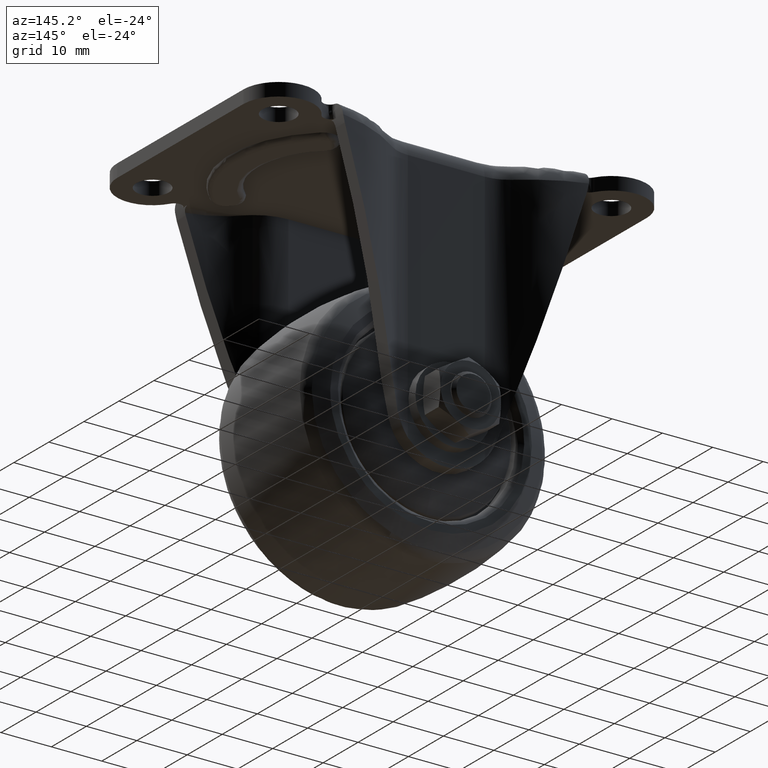
[diagram: clean part render]
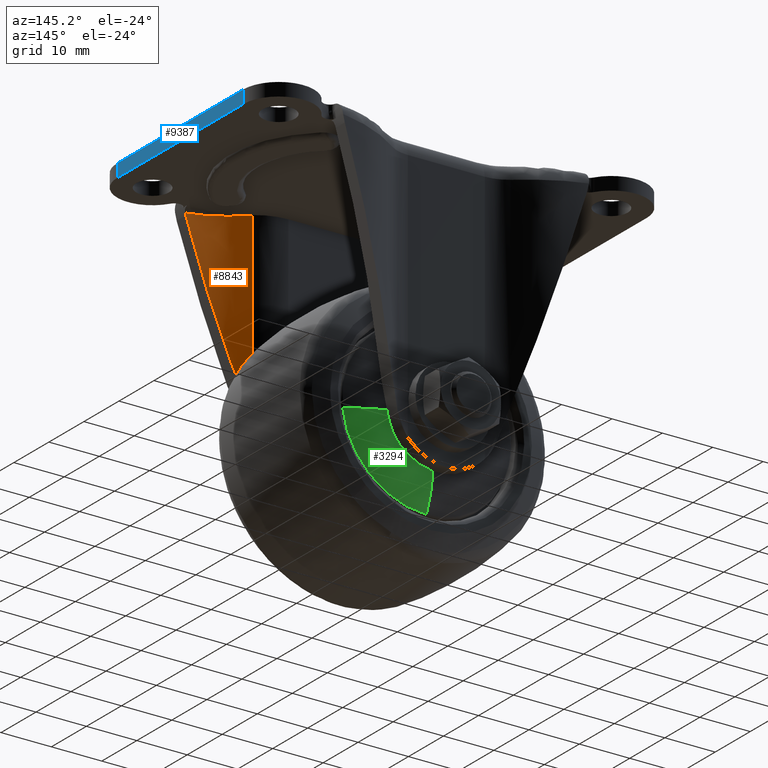
[diagram: same view with three faces highlighted in distinct colors, each labeled with its STEP entity id]
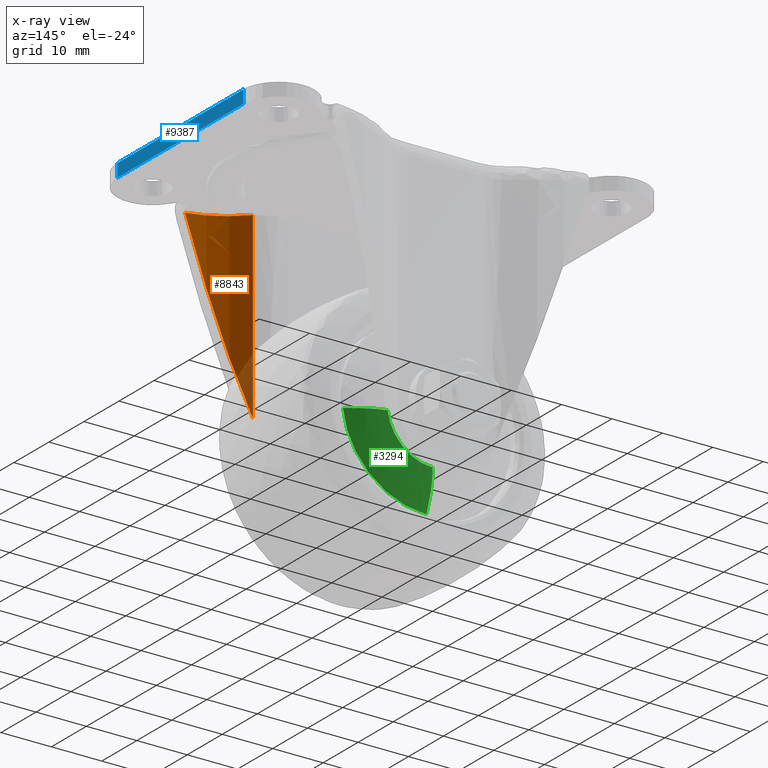
[diagram: x-ray of the same camera — body ghosted, the three highlighted faces saturated]
A machine part, auxiliary view with three faces highlighted in distinct colors.
The next image is the same camera in x-ray (body ghosted, the three faces saturated) — at least one of them is partly hidden behind the body in this view.
Their STEP definitions:

[orange] entity #8843 — the highlighted face is a freeform B-spline surface patch.
#5348=CARTESIAN_POINT('',(24.185625948997298,-21.397332430815851,-3.583078476151100));
#5349=VERTEX_POINT('',#5348);
#5362=CARTESIAN_POINT('',(13.345072648237799,-17.665193757485248,-2.600000000000160));
#5363=VERTEX_POINT('',#5362);
#5364=CARTESIAN_POINT('',(13.345072648237799,-17.665193757485248,-2.600000000000160));
#5365=CARTESIAN_POINT('',(14.556983112431960,-18.579596129378061,-2.723537442900512));
#5366=CARTESIAN_POINT('',(16.411652186417150,-19.648787723245949,-2.903539930618084));
#5367=CARTESIAN_POINT('',(19.207906352339648,-20.673314979693330,-3.158815099398745));
#5368=CARTESIAN_POINT('',(21.516683330001388,-21.221843247098111,-3.361431576712816));
#5369=CARTESIAN_POINT('',(23.274907205083679,-21.381871348119109,-3.508664531443601));
#5370=CARTESIAN_POINT('',(24.185625948997298,-21.397332430815851,-3.583078476151100));
#5371=B_SPLINE_CURVE_WITH_KNOTS('',3,(#5364,#5365,#5366,#5367,#5368,#5369,#5370),.UNSPECIFIED.,.F.,.U.,(4,1,1,1,4),(0.000000014599969,4.569437266361647,6.397186089417688,8.956089958446960,11.697748094953649),.UNSPECIFIED.);
#5372=EDGE_CURVE('',#5363,#5349,#5371,.T.);
#5605=CARTESIAN_POINT('',(24.057246435837801,-21.394708519502700,-4.038003514926206));
#5606=VERTEX_POINT('',#5605);
#5612=CARTESIAN_POINT('',(24.185625948997298,-21.397332430815851,-3.583078476151100));
#5613=CARTESIAN_POINT('',(24.057246435837801,-21.394708519502700,-4.038003514926206));
#5614=QUASI_UNIFORM_CURVE('',1,(#5612,#5613),.UNSPECIFIED.,.F.,.U.);
#5615=EDGE_CURVE('',#5349,#5606,#5614,.T.);
#8023=CARTESIAN_POINT('',(13.345072648237799,-17.665193757485248,-38.829692088989098));
#8024=VERTEX_POINT('',#8023);
#8025=CARTESIAN_POINT('',(13.345072648237799,-17.665193757485248,-38.829692088989098));
#8026=CARTESIAN_POINT('',(18.101501711263079,-21.252330403959220,-23.381455160929320));
#8027=CARTESIAN_POINT('',(24.057246435837801,-21.394708519502700,-4.038003514926206));
#8035=(BOUNDED_CURVE()B_SPLINE_CURVE(2,(#8025,#8026,#8027),.UNSPECIFIED.,.F.,.U.)CURVE()GEOMETRIC_REPRESENTATION_ITEM()QUASI_UNIFORM_CURVE()RATIONAL_B_SPLINE_CURVE((1.0,0.951988168835635,1.0))REPRESENTATION_ITEM(''));
#8036=EDGE_CURVE('',#8024,#5606,#8035,.T.);
#8797=CARTESIAN_POINT('',(13.345072648237799,-17.665193757485248,-38.829692088989098));
#8798=CARTESIAN_POINT('',(13.345072648237799,-17.665193757485248,-2.600000000000160));
#8799=QUASI_UNIFORM_CURVE('',1,(#8797,#8798),.UNSPECIFIED.,.F.,.U.);
#8800=EDGE_CURVE('',#8024,#5363,#8799,.T.);
#8823=CARTESIAN_POINT('',(24.755138643204500,-21.398243030921414,-39.735434391213815));
#8824=CARTESIAN_POINT('',(24.755138643204500,-21.398243030921414,-1.671614140219816));
#8825=CARTESIAN_POINT('',(18.089075750196702,-21.490056812341987,-39.735434391213836));
#8826=CARTESIAN_POINT('',(18.089075750196702,-21.490056812341987,-1.671614140219816));
#8827=CARTESIAN_POINT('',(12.893050368903465,-17.313198602999623,-39.735434391213822));
#8828=CARTESIAN_POINT('',(12.893050368903465,-17.313198602999623,-1.671614140219816));
#8836=(BOUNDED_SURFACE()B_SPLINE_SURFACE(1,2,((#8823,#8825,#8827),(#8824,#8826,#8828)),.UNSPECIFIED.,.F.,.F.,.U.)B_SPLINE_SURFACE_WITH_KNOTS((2,2),(3,3),(0.0,38.063820250994013),(0.0,12.927570682752910),.UNSPECIFIED.)GEOMETRIC_REPRESENTATION_ITEM()RATIONAL_B_SPLINE_SURFACE(((0.997758327578096,0.935910056265737,0.991581364117157),(0.997758327578096,0.935910056265737,0.991581364117157)))REPRESENTATION_ITEM('')SURFACE());
#8837=ORIENTED_EDGE('',*,*,#8800,.T.);
#8838=ORIENTED_EDGE('',*,*,#5372,.T.);
#8839=ORIENTED_EDGE('',*,*,#5615,.T.);
#8840=ORIENTED_EDGE('',*,*,#8036,.F.);
#8841=EDGE_LOOP('',(#8837,#8838,#8839,#8840));
#8842=FACE_OUTER_BOUND('',#8841,.T.);
#8843=ADVANCED_FACE('',(#8842),#8836,.F.);

[blue] entity #9387 — the highlighted face is a freeform B-spline surface patch.
#8947=CARTESIAN_POINT('',(40.0,-18.0,0.0));
#8948=VERTEX_POINT('',#8947);
#8967=CARTESIAN_POINT('',(40.0,18.0,0.0));
#8968=VERTEX_POINT('',#8967);
#8969=CARTESIAN_POINT('',(40.0,-18.0,0.0));
#8970=CARTESIAN_POINT('',(40.0,18.0,0.0));
#8971=QUASI_UNIFORM_CURVE('',1,(#8969,#8970),.UNSPECIFIED.,.F.,.U.);
#8972=EDGE_CURVE('',#8948,#8968,#8971,.T.);
#9338=CARTESIAN_POINT('',(40.0,-18.0,-2.600000000000160));
#9339=VERTEX_POINT('',#9338);
#9358=CARTESIAN_POINT('',(40.0,-18.0,-2.600000000000160));
#9359=CARTESIAN_POINT('',(40.0,-18.0,0.0));
#9360=QUASI_UNIFORM_CURVE('',1,(#9358,#9359),.UNSPECIFIED.,.F.,.U.);
#9361=EDGE_CURVE('',#9339,#8948,#9360,.T.);
#9366=CARTESIAN_POINT('',(40.0,-19.798199930225010,0.129869985671677));
#9367=CARTESIAN_POINT('',(40.0,-19.798199930225010,-2.729869869442780));
#9368=CARTESIAN_POINT('',(40.0,19.798200895820258,0.129869985671677));
#9369=CARTESIAN_POINT('',(40.0,19.798200895820258,-2.729869869442780));
#9370=B_SPLINE_SURFACE_WITH_KNOTS('',1,1,((#9366,#9368),(#9367,#9369)),.UNSPECIFIED.,.F.,.F.,.U.,(2,2),(2,2),(0.0,2.859739855114458),(0.0,39.596400826045269),.UNSPECIFIED.);
#9371=ORIENTED_EDGE('',*,*,#8972,.F.);
#9372=ORIENTED_EDGE('',*,*,#9361,.F.);
#9373=CARTESIAN_POINT('',(40.0,18.0,-2.600000000000160));
#9374=VERTEX_POINT('',#9373);
#9375=CARTESIAN_POINT('',(40.0,-18.0,-2.600000000000160));
#9376=CARTESIAN_POINT('',(40.0,18.0,-2.600000000000160));
#9377=QUASI_UNIFORM_CURVE('',1,(#9375,#9376),.UNSPECIFIED.,.F.,.U.);
#9378=EDGE_CURVE('',#9339,#9374,#9377,.T.);
#9379=ORIENTED_EDGE('',*,*,#9378,.T.);
#9380=CARTESIAN_POINT('',(40.0,18.0,-2.600000000000160));
#9381=CARTESIAN_POINT('',(40.0,18.0,0.0));
#9382=QUASI_UNIFORM_CURVE('',1,(#9380,#9381),.UNSPECIFIED.,.F.,.U.);
#9383=EDGE_CURVE('',#9374,#8968,#9382,.T.);
#9384=ORIENTED_EDGE('',*,*,#9383,.T.);
#9385=EDGE_LOOP('',(#9371,#9372,#9379,#9384));
#9386=FACE_OUTER_BOUND('',#9385,.T.);
#9387=ADVANCED_FACE('',(#9386),#9370,.T.);

[green] entity #3294 — the highlighted face is a freeform B-spline surface patch.
#2433=CARTESIAN_POINT('',(0.0,12.697447180214089,-63.707907167680773));
#2434=VERTEX_POINT('',#2433);
#2448=CARTESIAN_POINT('',(16.596091145750648,12.697479850771151,-48.929127650439852));
#2449=VERTEX_POINT('',#2448);
#2450=CARTESIAN_POINT('',(0.0,12.697447180214089,-63.707907167680773));
#2451=CARTESIAN_POINT('',(1.012962352000575,12.697448292314959,-63.707969725267908));
#2452=CARTESIAN_POINT('',(3.292159319593820,12.697450997908710,-63.500140632155677));
#2453=CARTESIAN_POINT('',(6.401002297041810,12.697455336550140,-62.553685676500812));
#2454=CARTESIAN_POINT('',(9.029572073706081,12.697459608547000,-61.136061453373337));
#2455=CARTESIAN_POINT('',(11.255830043193340,12.697463700426120,-59.450878158985127));
#2456=CARTESIAN_POINT('',(13.179868478907080,12.697467799954831,-57.418485891558340));
#2457=CARTESIAN_POINT('',(14.876001230231459,12.697472214950780,-54.807499663630857));
#2458=CARTESIAN_POINT('',(16.048661928638829,12.697476258506351,-51.988580438596287));
#2459=CARTESIAN_POINT('',(16.479224011520280,12.697478738695059,-49.935330569609363));
#2460=CARTESIAN_POINT('',(16.596091145750648,12.697479850771151,-48.929127650439852));
#2461=B_SPLINE_CURVE_WITH_KNOTS('',3,(#2450,#2451,#2452,#2453,#2454,#2455,#2456,#2457,#2458,#2459,#2460),.UNSPECIFIED.,.F.,.U.,(4,1,1,1,1,1,1,1,4),(0.000000032257450,3.038914767080328,6.837576297521931,9.686587330612589,11.965754238363870,15.194586092460501,18.043585347530911,21.272450283941161,24.311357575216739),.UNSPECIFIED.);
#2462=EDGE_CURVE('',#2434,#2449,#2461,.T.);
#2531=CARTESIAN_POINT('',(0.0,14.499999820683390,-55.999996225685180));
#2532=VERTEX_POINT('',#2531);
#2636=CARTESIAN_POINT('',(8.939776725916076,14.500000597485890,-48.039166054800127));
#2637=VERTEX_POINT('',#2636);
#2652=CARTESIAN_POINT('',(0.0,14.499999820683390,-55.999996225685180));
#2653=CARTESIAN_POINT('',(0.545652173191814,14.499999847125570,-56.000035427006637));
#2654=CARTESIAN_POINT('',(1.671056014127408,14.499999906096161,-55.897373290732808));
#2655=CARTESIAN_POINT('',(3.153457425760208,14.499999996230960,-55.473482151571112));
#2656=CARTESIAN_POINT('',(4.542978909185934,14.500000092047889,-54.813619788886768));
#2657=CARTESIAN_POINT('',(5.840891087715685,14.500000193471070,-53.920979455848340));
#2658=CARTESIAN_POINT('',(6.920381529754516,14.500000293347201,-52.818901142069670));
#2659=CARTESIAN_POINT('',(7.723121752500972,14.500000381800760,-51.670719441242397));
#2660=CARTESIAN_POINT('',(8.495964116575438,14.500000483385790,-50.184688805855806));
#2661=CARTESIAN_POINT('',(8.837814582238350,14.500000554530180,-48.920028708524548));
#2662=CARTESIAN_POINT('',(8.939776725916076,14.500000597485890,-48.039166054800127));
#2663=B_SPLINE_CURVE_WITH_KNOTS('',3,(#2652,#2653,#2654,#2655,#2656,#2657,#2658,#2659,#2660,#2661,#2662),.UNSPECIFIED.,.F.,.U.,(4,1,1,1,1,1,1,1,4),(0.000000126651925,1.636964095395111,3.376243328072359,4.603979235911554,6.240950283299865,8.082488800676666,9.207928110091876,10.435659424745520,13.095724982725359),.UNSPECIFIED.);
#2664=EDGE_CURVE('',#2532,#2637,#2663,.T.);
#3238=CARTESIAN_POINT('',(16.596091145750648,12.697479850771151,-48.929127650439852));
#3239=CARTESIAN_POINT('',(15.883784992565440,13.025447070413961,-48.846330062544553));
#3240=CARTESIAN_POINT('',(14.228066629036460,13.671599853447001,-48.653871332526450));
#3241=CARTESIAN_POINT('',(11.655632163726059,14.294245729500011,-48.354854380535933));
#3242=CARTESIAN_POINT('',(9.805092407507415,14.473431954247911,-48.139749510039543));
#3243=CARTESIAN_POINT('',(8.939776725916076,14.500000597485890,-48.039166054800127));
#3244=B_SPLINE_CURVE_WITH_KNOTS('',3,(#3238,#3239,#3240,#3241,#3242,#3243),.UNSPECIFIED.,.F.,.U.,(4,1,1,4),(6.074119E-009,2.365631811074070,5.353790401523410,7.968436273105016),.UNSPECIFIED.);
#3245=EDGE_CURVE('',#2449,#2637,#3244,.T.);
#3251=CARTESIAN_POINT('',(0.0,12.697447180214089,-63.707907167680773));
#3252=CARTESIAN_POINT('',(0.0,13.129003325670730,-62.764357963439487));
#3253=CARTESIAN_POINT('',(0.0,14.045406282222730,-60.262683725281200));
#3254=CARTESIAN_POINT('',(0.0,14.451021857819081,-57.617898175165379));
#3255=CARTESIAN_POINT('',(0.0,14.499999820683390,-55.999996225685180));
#3256=B_SPLINE_CURVE_WITH_KNOTS('',3,(#3251,#3252,#3253,#3254,#3255),.UNSPECIFIED.,.F.,.U.,(4,1,4),(6.078026E-009,3.112693205535816,7.968489366568259),.UNSPECIFIED.);
#3257=EDGE_CURVE('',#2434,#2532,#3256,.T.);
#3265=CARTESIAN_POINT('',(-0.110720523841149,12.529532764816082,-64.065673212389811));
#3266=CARTESIAN_POINT('',(-0.084703731757860,14.460187577273771,-60.055630120784592));
#3267=CARTESIAN_POINT('',(-0.055830299397939,14.508150584636534,-55.605284836278940));
#3268=CARTESIAN_POINT('',(-0.055434749028314,12.529532764816089,-64.065673212389825));
#3269=CARTESIAN_POINT('',(-0.042408850219091,14.460187577273775,-60.055630120784592));
#3270=CARTESIAN_POINT('',(-0.027952709470023,14.508150584636532,-55.605284836278933));
#3271=CARTESIAN_POINT('',(15.196840364657840,12.529532764816084,-64.065673212389854));
#3272=CARTESIAN_POINT('',(11.625930271624943,14.460187577273771,-60.055630120784599));
#3273=CARTESIAN_POINT('',(7.662934729958332,14.508150584636534,-55.605284836278948));
#3274=CARTESIAN_POINT('',(16.958223810387295,12.529532764816084,-48.912905232183832));
#3275=CARTESIAN_POINT('',(12.973428872009581,14.460187577273770,-48.463416230739391));
#3276=CARTESIAN_POINT('',(8.551103984564952,14.508150584636532,-47.964573397303738));
#3277=CARTESIAN_POINT('',(16.964899998746713,12.529532764816082,-48.855471552170741));
#3278=CARTESIAN_POINT('',(12.978536308719079,14.460187577273780,-48.419478152622332));
#3279=CARTESIAN_POINT('',(8.554470420904055,14.508150584636534,-47.935612736358379));
#3287=(BOUNDED_SURFACE()B_SPLINE_SURFACE(2,2,((#3265,#3268,#3271,#3274,#3277),(#3266,#3269,#3272,#3275,#3278),(#3267,#3270,#3273,#3276,#3279)),.UNSPECIFIED.,.F.,.F.,.U.)B_SPLINE_SURFACE_WITH_KNOTS((3,3),(3,1,1,3),(0.0,8.793657295816988),(0.0,0.129924035850989,26.114697556898349,26.244655822705550),.UNSPECIFIED.)GEOMETRIC_REPRESENTATION_ITEM()RATIONAL_B_SPLINE_SURFACE(((0.905264612313332,0.904048217472697,0.659553169540375,0.864929279000824,0.865951319864255),(0.884162191365862,0.882974151633354,0.644178473090779,0.844767105988642,0.845765322286049),(0.906314490758261,0.905096685206652,0.660318084733753,0.865932378640487,0.866955604813337)))REPRESENTATION_ITEM('')SURFACE());
#3288=ORIENTED_EDGE('',*,*,#2462,.F.);
#3289=ORIENTED_EDGE('',*,*,#3257,.T.);
#3290=ORIENTED_EDGE('',*,*,#2664,.T.);
#3291=ORIENTED_EDGE('',*,*,#3245,.F.);
#3292=EDGE_LOOP('',(#3288,#3289,#3290,#3291));
#3293=FACE_OUTER_BOUND('',#3292,.T.);
#3294=ADVANCED_FACE('',(#3293),#3287,.T.);